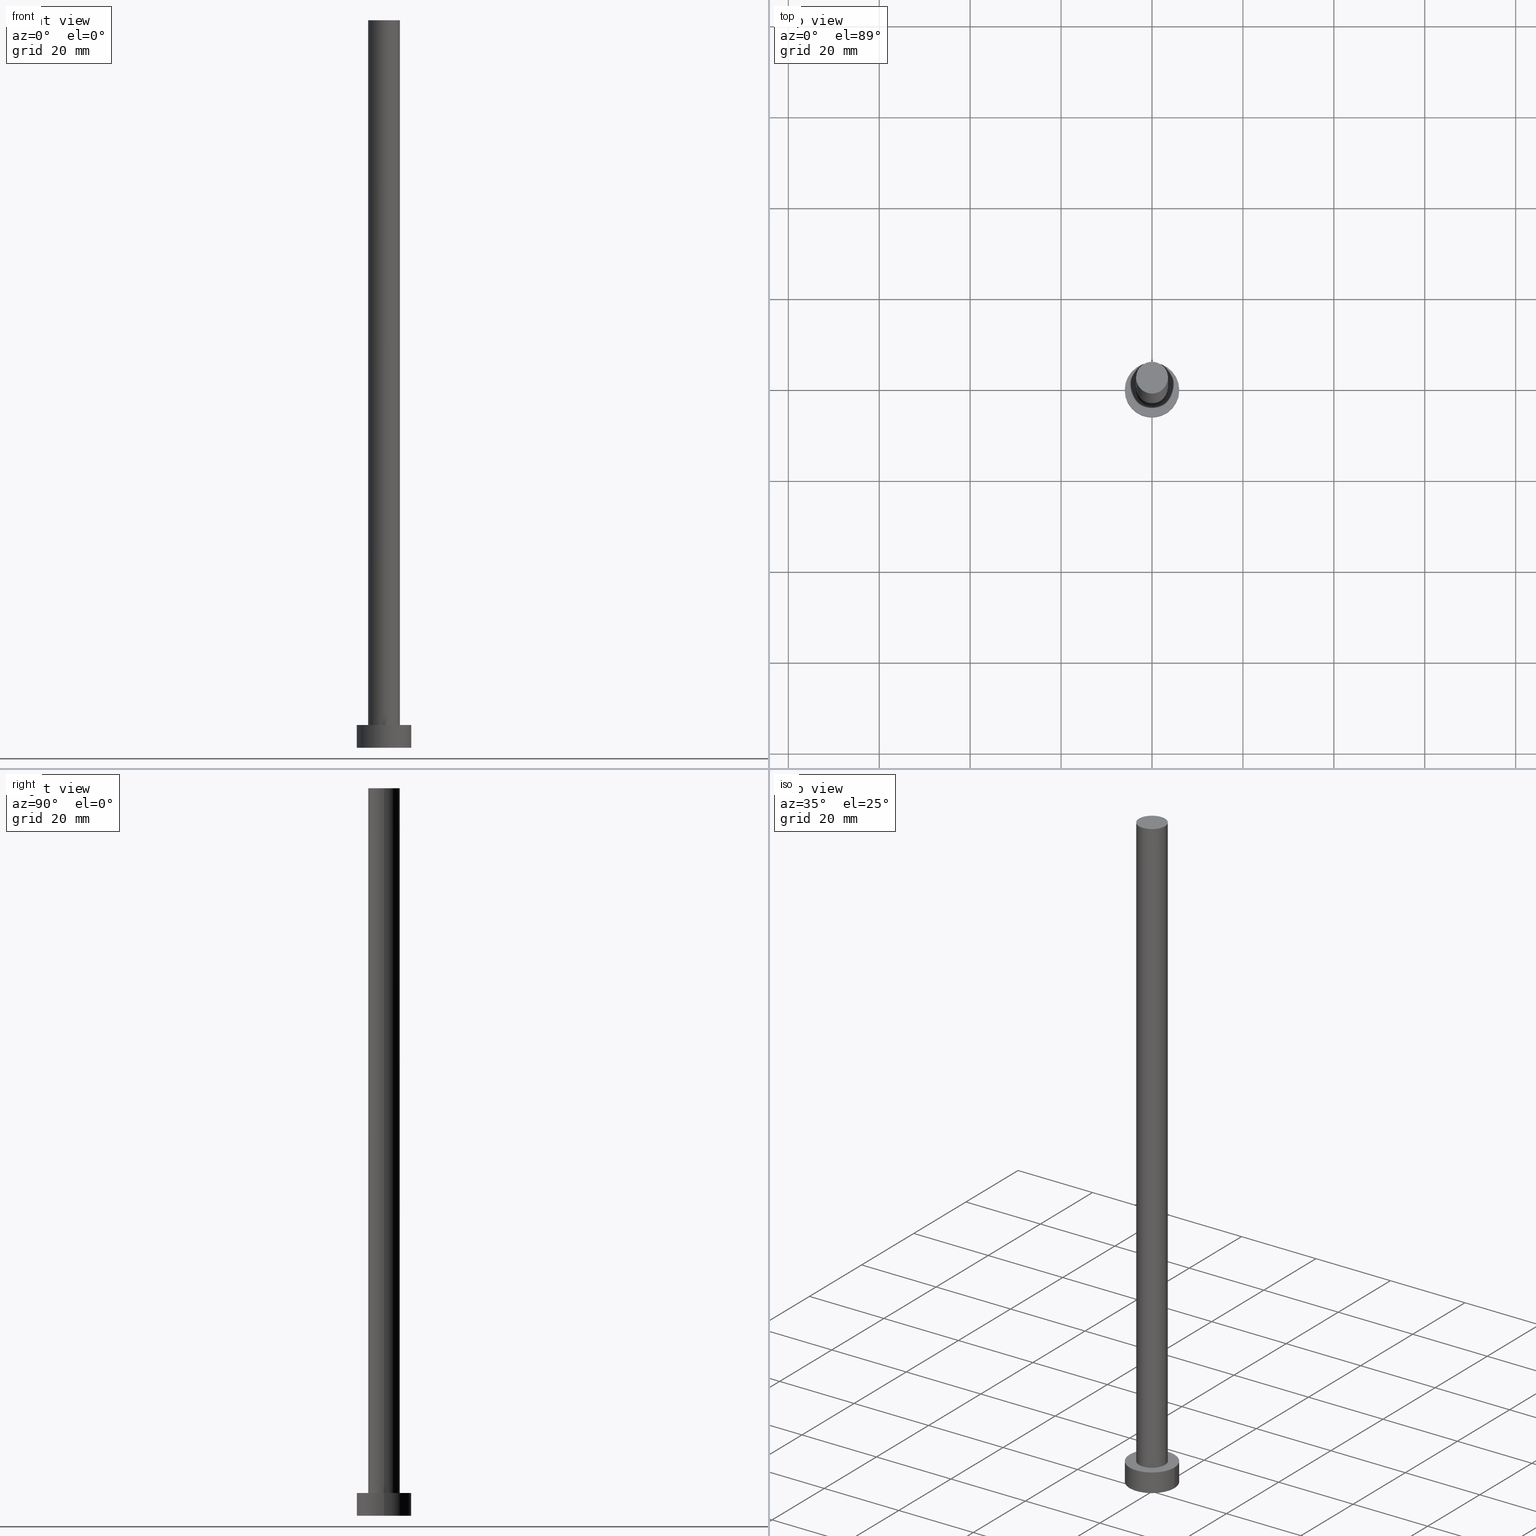
[diagram: canonical four-view strip — front | top / right | iso, engineering-drawing reading convention]
A machine part, canonical four-view strip (front | top / right | iso — engineering-drawing reading convention). The complete STEP part file that produces these views, byte-faithful:
ISO-10303-21;
HEADER;
FILE_DESCRIPTION (( 'STEP AP203' ),
    '1' );
FILE_NAME ('b78a.STEP',
    '2023-02-13T14:51:45',
    ( '' ),
    ( '' ),
    'SwSTEP 2.0',
    'SolidWorks 2019',
    '' );
FILE_SCHEMA (( 'CONFIG_CONTROL_DESIGN' ));
ENDSEC;

DATA;
#1 = PERSON_AND_ORGANIZATION ( #98, #184 ) ;
#2 = PERSON_AND_ORGANIZATION ( #98, #184 ) ;
#3 = ADVANCED_FACE ( 'NONE', ( #35 ), #82, .T. ) ;
#4 = DIRECTION ( 'NONE',  ( 0.000000000000000000, 0.000000000000000000, 1.000000000000000000 ) ) ;
#5 =( GEOMETRIC_REPRESENTATION_CONTEXT ( 3 ) GLOBAL_UNCERTAINTY_ASSIGNED_CONTEXT ( ( #163 ) ) GLOBAL_UNIT_ASSIGNED_CONTEXT ( ( #147, #89, #75 ) ) REPRESENTATION_CONTEXT ( 'NONE', 'WORKASPACE' ) );
#6 = APPLICATION_PROTOCOL_DEFINITION ( 'international standard', 'config_control_design', 1994, #125 ) ;
#7 = APPROVAL ( #103, 'NEUR�EN�' ) ;
#8 = CARTESIAN_POINT ( 'NONE',  ( -3.500000000000000000, 0.000000000000000000, 5.000000000000000000 ) ) ;
#9 = DIRECTION ( 'NONE',  ( -0.000000000000000000, -0.000000000000000000, -1.000000000000000000 ) ) ;
#10 = DIRECTION ( 'NONE',  ( 1.000000000000000000, 0.000000000000000000, -0.000000000000000000 ) ) ;
#11 = CARTESIAN_POINT ( 'NONE',  ( 3.500000000000000000, 4.286263797015736595E-16, 5.000000000000000000 ) ) ;
#12 = CC_DESIGN_SECURITY_CLASSIFICATION ( #88, ( #218 ) ) ;
#13 = EDGE_LOOP ( 'NONE', ( #180, #241, #108, #157 ) ) ;
#14 = DIRECTION ( 'NONE',  ( 1.000000000000000000, 0.000000000000000000, 0.000000000000000000 ) ) ;
#15 = AXIS2_PLACEMENT_3D ( 'NONE', #57, #253, #195 ) ;
#16 = ADVANCED_FACE ( 'NONE', ( #234 ), #73, .F. ) ;
#17 = VECTOR ( 'NONE', #27, 1000.000000000000000 ) ;
#18 = APPROVAL_STATUS ( 'not_yet_approved' ) ;
#19 = DIRECTION ( 'NONE',  ( 1.000000000000000000, 0.000000000000000000, -0.000000000000000000 ) ) ;
#20 = ORIENTED_EDGE ( 'NONE', *, *, #189, .F. ) ;
#21 = EDGE_CURVE ( 'NONE', #60, #220, #245, .T. ) ;
#22 = AXIS2_PLACEMENT_3D ( 'NONE', #134, #211, #166 ) ;
#23 = CALENDAR_DATE ( 2023, 13, 2 ) ;
#24 = EDGE_CURVE ( 'NONE', #199, #200, #179, .T. ) ;
#25 = CARTESIAN_POINT ( 'NONE',  ( 3.500000000000000000, 4.286263797015736595E-16, 160.0000000000000000 ) ) ;
#26 = LOCAL_TIME ( 15, 51, 45.00000000000000000, #194 ) ;
#27 = DIRECTION ( 'NONE',  ( -0.000000000000000000, -0.000000000000000000, -1.000000000000000000 ) ) ;
#28 = CIRCLE ( 'NONE', #15, 6.000000000000000888 ) ;
#29 = CARTESIAN_POINT ( 'NONE',  ( 6.000000000000000888, 7.347880794884120722E-16, 5.000000000000000000 ) ) ;
#30 = CARTESIAN_POINT ( 'NONE',  ( 0.000000000000000000, 0.000000000000000000, 5.000000000000000000 ) ) ;
#31 = CLOSED_SHELL ( 'NONE', ( #112, #229, #171, #74, #16, #3, #102 ) ) ;
#32 = AXIS2_PLACEMENT_3D ( 'NONE', #111, #109, #14 ) ;
#33 = COORDINATED_UNIVERSAL_TIME_OFFSET ( 1, 0, .AHEAD. ) ;
#34 = PLANE ( 'NONE',  #70 ) ;
#35 = FACE_OUTER_BOUND ( 'NONE', #255, .T. ) ;
#36 = APPROVAL_ROLE ( '' ) ;
#37 = CALENDAR_DATE ( 2023, 13, 2 ) ;
#38 = APPROVAL ( #135, 'NEUR�EN�' ) ;
#39 = APPROVAL_DATE_TIME ( #41, #7 ) ;
#40 = VECTOR ( 'NONE', #181, 1000.000000000000000 ) ;
#41 = DATE_AND_TIME ( #37, #100 ) ;
#42 = EDGE_LOOP ( 'NONE', ( #101, #96 ) ) ;
#43 = DIRECTION ( 'NONE',  ( 1.000000000000000000, 0.000000000000000000, 0.000000000000000000 ) ) ;
#44 = EDGE_CURVE ( 'NONE', #199, #161, #251, .T. ) ;
#45 = ORIENTED_EDGE ( 'NONE', *, *, #44, .T. ) ;
#46 = CARTESIAN_POINT ( 'NONE',  ( 0.000000000000000000, 0.000000000000000000, 160.0000000000000000 ) ) ;
#47 = LINE ( 'NONE', #65, #40 ) ;
#48 = DIRECTION ( 'NONE',  ( -1.000000000000000000, 0.000000000000000000, 0.000000000000000000 ) ) ;
#49 = ORIENTED_EDGE ( 'NONE', *, *, #24, .F. ) ;
#50 = DIRECTION ( 'NONE',  ( 1.000000000000000000, 0.000000000000000000, 0.000000000000000000 ) ) ;
#51 = APPROVAL_PERSON_ORGANIZATION ( #188, #38, #212 ) ;
#52 = CARTESIAN_POINT ( 'NONE',  ( 0.000000000000000000, 0.000000000000000000, 160.0000000000000000 ) ) ;
#53 = PERSON_AND_ORGANIZATION_ROLE ( 'design_supplier' ) ;
#54 = VERTEX_POINT ( 'NONE', #8 ) ;
#55 = DATE_AND_TIME ( #217, #26 ) ;
#56 = AXIS2_PLACEMENT_3D ( 'NONE', #243, #4, #141 ) ;
#57 = CARTESIAN_POINT ( 'NONE',  ( 0.000000000000000000, 0.000000000000000000, 5.000000000000000000 ) ) ;
#58 = COORDINATED_UNIVERSAL_TIME_OFFSET ( 1, 0, .AHEAD. ) ;
#59 = APPLICATION_CONTEXT ( 'configuration controlled 3d designs of mechanical parts and assemblies' ) ;
#60 = VERTEX_POINT ( 'NONE', #159 ) ;
#61 = AXIS2_PLACEMENT_3D ( 'NONE', #91, #114, #226 ) ;
#62 = DIRECTION ( 'NONE',  ( 0.000000000000000000, 0.000000000000000000, 1.000000000000000000 ) ) ;
#63 = ORIENTED_EDGE ( 'NONE', *, *, #21, .T. ) ;
#64 = CARTESIAN_POINT ( 'NONE',  ( 0.000000000000000000, 0.000000000000000000, 160.0000000000000000 ) ) ;
#65 = CARTESIAN_POINT ( 'NONE',  ( -6.000000000000000888, 0.000000000000000000, 5.000000000000000000 ) ) ;
#66 = AXIS2_PLACEMENT_3D ( 'NONE', #165, #249, #145 ) ;
#67 = DATE_TIME_ROLE ( 'creation_date' ) ;
#68 = FACE_OUTER_BOUND ( 'NONE', #216, .T. ) ;
#69 = LOCAL_TIME ( 15, 51, 45.00000000000000000, #78 ) ;
#70 = AXIS2_PLACEMENT_3D ( 'NONE', #153, #127, #19 ) ;
#71 = CC_DESIGN_PERSON_AND_ORGANIZATION_ASSIGNMENT ( #169, #139, ( #129 ) ) ;
#72 = LINE ( 'NONE', #206, #235 ) ;
#73 = PLANE ( 'NONE',  #66 ) ;
#74 = ADVANCED_FACE ( 'NONE', ( #247, #104 ), #34, .T. ) ;
#75 =( NAMED_UNIT ( * ) SI_UNIT ( $, .STERADIAN. ) SOLID_ANGLE_UNIT ( ) );
#76 = APPROVAL_PERSON_ORGANIZATION ( #176, #7, #36 ) ;
#77 = ORIENTED_EDGE ( 'NONE', *, *, #142, .F. ) ;
#78 = COORDINATED_UNIVERSAL_TIME_OFFSET ( 1, 0, .AHEAD. ) ;
#79 = DIRECTION ( 'NONE',  ( 0.000000000000000000, 0.000000000000000000, 1.000000000000000000 ) ) ;
#80 = ORIENTED_EDGE ( 'NONE', *, *, #126, .F. ) ;
#81 = PERSON_AND_ORGANIZATION_ROLE ( 'classification_officer' ) ;
#82 = CYLINDRICAL_SURFACE ( 'NONE', #144, 3.500000000000000000 ) ;
#83 = LOCAL_TIME ( 15, 51, 45.00000000000000000, #33 ) ;
#84 = DIRECTION ( 'NONE',  ( -1.000000000000000000, 0.000000000000000000, 0.000000000000000000 ) ) ;
#85 = SHAPE_DEFINITION_REPRESENTATION ( #191, #228 ) ;
#86 = CARTESIAN_POINT ( 'NONE',  ( 6.000000000000000888, 7.347880794884120722E-16, 0.000000000000000000 ) ) ;
#87 = CARTESIAN_POINT ( 'NONE',  ( 0.000000000000000000, 0.000000000000000000, 5.000000000000000000 ) ) ;
#88 = SECURITY_CLASSIFICATION ( '', '', #136 ) ;
#89 =( NAMED_UNIT ( * ) PLANE_ANGLE_UNIT ( ) SI_UNIT ( $, .RADIAN. ) );
#90 = CIRCLE ( 'NONE', #232, 6.000000000000000888 ) ;
#91 = CARTESIAN_POINT ( 'NONE',  ( 0.000000000000000000, 0.000000000000000000, 5.000000000000000000 ) ) ;
#92 = EDGE_CURVE ( 'NONE', #185, #161, #130, .T. ) ;
#93 = AXIS2_PLACEMENT_3D ( 'NONE', #46, #248, #160 ) ;
#94 = CC_DESIGN_PERSON_AND_ORGANIZATION_ASSIGNMENT ( #1, #53, ( #218 ) ) ;
#95 = DATE_AND_TIME ( #119, #83 ) ;
#96 = ORIENTED_EDGE ( 'NONE', *, *, #182, .F. ) ;
#97 = APPLICATION_PROTOCOL_DEFINITION ( 'international standard', 'config_control_design', 1994, #59 ) ;
#98 = PERSON ( 'NEUR�EN�', 'NEUR�EN�', 'NEUR�EN�', ('NEUR�EN�'), ('NEUR�EN�'), ('NEUR�EN�') ) ;
#99 = DIRECTION ( 'NONE',  ( -0.000000000000000000, -0.000000000000000000, -1.000000000000000000 ) ) ;
#100 = LOCAL_TIME ( 15, 51, 45.00000000000000000, #58 ) ;
#101 = ORIENTED_EDGE ( 'NONE', *, *, #167, .F. ) ;
#102 = ADVANCED_FACE ( 'NONE', ( #178 ), #242, .T. ) ;
#103 = APPROVAL_STATUS ( 'not_yet_approved' ) ;
#104 = FACE_OUTER_BOUND ( 'NONE', #131, .T. ) ;
#105 = CALENDAR_DATE ( 2023, 13, 2 ) ;
#106 = CC_DESIGN_DATE_AND_TIME_ASSIGNMENT ( #55, #192, ( #88 ) ) ;
#107 = VERTEX_POINT ( 'NONE', #11 ) ;
#108 = ORIENTED_EDGE ( 'NONE', *, *, #151, .T. ) ;
#109 = DIRECTION ( 'NONE',  ( 0.000000000000000000, 0.000000000000000000, 1.000000000000000000 ) ) ;
#110 = FACE_OUTER_BOUND ( 'NONE', #123, .T. ) ;
#111 = CARTESIAN_POINT ( 'NONE',  ( 0.000000000000000000, 0.000000000000000000, 0.000000000000000000 ) ) ;
#112 = ADVANCED_FACE ( 'NONE', ( #68 ), #224, .T. ) ;
#113 = CARTESIAN_POINT ( 'NONE',  ( -6.000000000000000888, 0.000000000000000000, 0.000000000000000000 ) ) ;
#114 = DIRECTION ( 'NONE',  ( 0.000000000000000000, 0.000000000000000000, 1.000000000000000000 ) ) ;
#115 = CIRCLE ( 'NONE', #56, 3.500000000000000000 ) ;
#116 = AXIS2_PLACEMENT_3D ( 'NONE', #156, #138, #221 ) ;
#117 = EDGE_CURVE ( 'NONE', #60, #54, #143, .T. ) ;
#118 = PERSON_AND_ORGANIZATION_ROLE ( 'design_owner' ) ;
#119 = CALENDAR_DATE ( 2023, 13, 2 ) ;
#120 = APPROVAL_ROLE ( '' ) ;
#121 = EDGE_CURVE ( 'NONE', #200, #199, #28, .T. ) ;
#122 = PERSON_AND_ORGANIZATION_ROLE ( 'creator' ) ;
#123 = EDGE_LOOP ( 'NONE', ( #49, #45, #146, #231 ) ) ;
#124 = ORIENTED_EDGE ( 'NONE', *, *, #189, .T. ) ;
#125 = APPLICATION_CONTEXT ( 'configuration controlled 3d designs of mechanical parts and assemblies' ) ;
#126 = EDGE_CURVE ( 'NONE', #161, #185, #90, .T. ) ;
#127 = DIRECTION ( 'NONE',  ( 0.000000000000000000, 0.000000000000000000, 1.000000000000000000 ) ) ;
#128 = CYLINDRICAL_SURFACE ( 'NONE', #154, 6.000000000000000888 ) ;
#129 = PRODUCT_DEFINITION ( 'NEZN�M�', '', #218, #204 ) ;
#130 = CIRCLE ( 'NONE', #215, 6.000000000000000888 ) ;
#131 = EDGE_LOOP ( 'NONE', ( #225, #164 ) ) ;
#132 = CC_DESIGN_PERSON_AND_ORGANIZATION_ASSIGNMENT ( #210, #118, ( #237 ) ) ;
#133 = AXIS2_PLACEMENT_3D ( 'NONE', #205, #230, #50 ) ;
#134 = CARTESIAN_POINT ( 'NONE',  ( 0.000000000000000000, 0.000000000000000000, 5.000000000000000000 ) ) ;
#135 = APPROVAL_STATUS ( 'not_yet_approved' ) ;
#136 = SECURITY_CLASSIFICATION_LEVEL ( 'unclassified' ) ;
#137 = CC_DESIGN_PERSON_AND_ORGANIZATION_ASSIGNMENT ( #196, #122, ( #218 ) ) ;
#138 = DIRECTION ( 'NONE',  ( 0.000000000000000000, 0.000000000000000000, 1.000000000000000000 ) ) ;
#139 = PERSON_AND_ORGANIZATION_ROLE ( 'creator' ) ;
#140 = CIRCLE ( 'NONE', #116, 3.500000000000000000 ) ;
#141 = DIRECTION ( 'NONE',  ( 1.000000000000000000, 0.000000000000000000, 0.000000000000000000 ) ) ;
#142 = EDGE_CURVE ( 'NONE', #220, #60, #115, .T. ) ;
#143 = LINE ( 'NONE', #150, #202 ) ;
#144 = AXIS2_PLACEMENT_3D ( 'NONE', #52, #233, #214 ) ;
#145 = DIRECTION ( 'NONE',  ( 1.000000000000000000, 0.000000000000000000, -0.000000000000000000 ) ) ;
#146 = ORIENTED_EDGE ( 'NONE', *, *, #126, .T. ) ;
#147 =( LENGTH_UNIT ( ) NAMED_UNIT ( * ) SI_UNIT ( .MILLI., .METRE. ) );
#148 = CARTESIAN_POINT ( 'NONE',  ( 6.000000000000000888, 7.347880794884120722E-16, 5.000000000000000000 ) ) ;
#149 = ORIENTED_EDGE ( 'NONE', *, *, #117, .F. ) ;
#150 = CARTESIAN_POINT ( 'NONE',  ( -3.500000000000000000, 0.000000000000000000, 160.0000000000000000 ) ) ;
#151 = EDGE_CURVE ( 'NONE', #200, #185, #47, .T. ) ;
#152 = DATE_AND_TIME ( #105, #69 ) ;
#153 = CARTESIAN_POINT ( 'NONE',  ( 0.000000000000000000, 0.000000000000000000, 5.000000000000000000 ) ) ;
#154 = AXIS2_PLACEMENT_3D ( 'NONE', #30, #203, #48 ) ;
#155 = ORIENTED_EDGE ( 'NONE', *, *, #142, .T. ) ;
#156 = CARTESIAN_POINT ( 'NONE',  ( 0.000000000000000000, 0.000000000000000000, 5.000000000000000000 ) ) ;
#157 = ORIENTED_EDGE ( 'NONE', *, *, #92, .T. ) ;
#158 = CYLINDRICAL_SURFACE ( 'NONE', #209, 6.000000000000000888 ) ;
#159 = CARTESIAN_POINT ( 'NONE',  ( -3.500000000000000000, 0.000000000000000000, 160.0000000000000000 ) ) ;
#160 = DIRECTION ( 'NONE',  ( -1.000000000000000000, 0.000000000000000000, 0.000000000000000000 ) ) ;
#161 = VERTEX_POINT ( 'NONE', #86 ) ;
#162 = AXIS2_PLACEMENT_3D ( 'NONE', #64, #207, #10 ) ;
#163 = UNCERTAINTY_MEASURE_WITH_UNIT (LENGTH_MEASURE( 1.000000000000000082E-05 ), #147, 'distance_accuracy_value', 'NONE');
#164 = ORIENTED_EDGE ( 'NONE', *, *, #24, .T. ) ;
#165 = CARTESIAN_POINT ( 'NONE',  ( 0.000000000000000000, 0.000000000000000000, 0.000000000000000000 ) ) ;
#166 = DIRECTION ( 'NONE',  ( 1.000000000000000000, 0.000000000000000000, 0.000000000000000000 ) ) ;
#167 = EDGE_CURVE ( 'NONE', #54, #107, #140, .T. ) ;
#168 = CIRCLE ( 'NONE', #61, 3.500000000000000000 ) ;
#169 = PERSON_AND_ORGANIZATION ( #98, #184 ) ;
#170 = ORIENTED_EDGE ( 'NONE', *, *, #167, .T. ) ;
#171 = ADVANCED_FACE ( 'NONE', ( #187 ), #128, .T. ) ;
#172 = APPROVAL_DATE_TIME ( #152, #186 ) ;
#173 = CC_DESIGN_APPROVAL ( #186, ( #218 ) ) ;
#174 = CARTESIAN_POINT ( 'NONE',  ( 0.000000000000000000, 0.000000000000000000, 0.000000000000000000 ) ) ;
#175 = DIRECTION ( 'NONE',  ( -0.000000000000000000, -0.000000000000000000, -1.000000000000000000 ) ) ;
#176 = PERSON_AND_ORGANIZATION ( #98, #184 ) ;
#177 = ORIENTED_EDGE ( 'NONE', *, *, #117, .T. ) ;
#178 = FACE_OUTER_BOUND ( 'NONE', #238, .T. ) ;
#179 = CIRCLE ( 'NONE', #22, 6.000000000000000888 ) ;
#180 = ORIENTED_EDGE ( 'NONE', *, *, #44, .F. ) ;
#181 = DIRECTION ( 'NONE',  ( -0.000000000000000000, -0.000000000000000000, -1.000000000000000000 ) ) ;
#182 = EDGE_CURVE ( 'NONE', #107, #54, #168, .T. ) ;
#183 = MECHANICAL_CONTEXT ( 'NONE', #59, 'mechanical' ) ;
#184 = ORGANIZATION ( 'NEUR�EN�', 'NEUR�EN�', '' ) ;
#185 = VERTEX_POINT ( 'NONE', #113 ) ;
#186 = APPROVAL ( #18, 'NEUR�EN�' ) ;
#187 = FACE_OUTER_BOUND ( 'NONE', #13, .T. ) ;
#188 = PERSON_AND_ORGANIZATION ( #98, #184 ) ;
#189 = EDGE_CURVE ( 'NONE', #220, #107, #72, .T. ) ;
#190 = APPROVAL_DATE_TIME ( #95, #38 ) ;
#191 = PRODUCT_DEFINITION_SHAPE ( 'NONE', 'NONE',  #129 ) ;
#192 = DATE_TIME_ROLE ( 'classification_date' ) ;
#193 = EDGE_LOOP ( 'NONE', ( #208, #80 ) ) ;
#194 = COORDINATED_UNIVERSAL_TIME_OFFSET ( 1, 0, .AHEAD. ) ;
#195 = DIRECTION ( 'NONE',  ( 1.000000000000000000, 0.000000000000000000, 0.000000000000000000 ) ) ;
#196 = PERSON_AND_ORGANIZATION ( #98, #184 ) ;
#197 = LOCAL_TIME ( 15, 51, 45.00000000000000000, #222 ) ;
#198 = PERSON_AND_ORGANIZATION ( #98, #184 ) ;
#199 = VERTEX_POINT ( 'NONE', #29 ) ;
#200 = VERTEX_POINT ( 'NONE', #227 ) ;
#201 = APPROVAL_PERSON_ORGANIZATION ( #198, #186, #120 ) ;
#202 = VECTOR ( 'NONE', #99, 1000.000000000000000 ) ;
#203 = DIRECTION ( 'NONE',  ( -0.000000000000000000, -0.000000000000000000, -1.000000000000000000 ) ) ;
#204 = DESIGN_CONTEXT ( 'detailed design', #125, 'design' ) ;
#205 = CARTESIAN_POINT ( 'NONE',  ( 0.000000000000000000, 0.000000000000000000, 160.0000000000000000 ) ) ;
#206 = CARTESIAN_POINT ( 'NONE',  ( 3.500000000000000000, 4.286263797015736595E-16, 160.0000000000000000 ) ) ;
#207 = DIRECTION ( 'NONE',  ( 0.000000000000000000, 0.000000000000000000, 1.000000000000000000 ) ) ;
#208 = ORIENTED_EDGE ( 'NONE', *, *, #92, .F. ) ;
#209 = AXIS2_PLACEMENT_3D ( 'NONE', #87, #175, #84 ) ;
#210 = PERSON_AND_ORGANIZATION ( #98, #184 ) ;
#211 = DIRECTION ( 'NONE',  ( 0.000000000000000000, 0.000000000000000000, 1.000000000000000000 ) ) ;
#212 = APPROVAL_ROLE ( '' ) ;
#213 = DIRECTION ( 'NONE',  ( 1.000000000000000000, 0.000000000000000000, 0.000000000000000000 ) ) ;
#214 = DIRECTION ( 'NONE',  ( -1.000000000000000000, 0.000000000000000000, 0.000000000000000000 ) ) ;
#215 = AXIS2_PLACEMENT_3D ( 'NONE', #240, #62, #43 ) ;
#216 = EDGE_LOOP ( 'NONE', ( #77, #124, #223, #149 ) ) ;
#217 = CALENDAR_DATE ( 2023, 13, 2 ) ;
#218 = PRODUCT_DEFINITION_FORMATION_WITH_SPECIFIED_SOURCE ( 'LIBOVOLN�', '', #237, .NOT_KNOWN. ) ;
#219 = PRODUCT_RELATED_PRODUCT_CATEGORY ( 'detail', '', ( #237 ) ) ;
#220 = VERTEX_POINT ( 'NONE', #25 ) ;
#221 = DIRECTION ( 'NONE',  ( 1.000000000000000000, 0.000000000000000000, 0.000000000000000000 ) ) ;
#222 = COORDINATED_UNIVERSAL_TIME_OFFSET ( 1, 0, .AHEAD. ) ;
#223 = ORIENTED_EDGE ( 'NONE', *, *, #182, .T. ) ;
#224 = CYLINDRICAL_SURFACE ( 'NONE', #93, 3.500000000000000000 ) ;
#225 = ORIENTED_EDGE ( 'NONE', *, *, #121, .T. ) ;
#226 = DIRECTION ( 'NONE',  ( 1.000000000000000000, 0.000000000000000000, 0.000000000000000000 ) ) ;
#227 = CARTESIAN_POINT ( 'NONE',  ( -6.000000000000000888, 0.000000000000000000, 5.000000000000000000 ) ) ;
#228 = ADVANCED_BREP_SHAPE_REPRESENTATION ( 'b78a', ( #244, #32 ), #5 ) ;
#229 = ADVANCED_FACE ( 'NONE', ( #110 ), #158, .T. ) ;
#230 = DIRECTION ( 'NONE',  ( 0.000000000000000000, 0.000000000000000000, 1.000000000000000000 ) ) ;
#231 = ORIENTED_EDGE ( 'NONE', *, *, #151, .F. ) ;
#232 = AXIS2_PLACEMENT_3D ( 'NONE', #174, #79, #213 ) ;
#233 = DIRECTION ( 'NONE',  ( -0.000000000000000000, -0.000000000000000000, -1.000000000000000000 ) ) ;
#234 = FACE_OUTER_BOUND ( 'NONE', #193, .T. ) ;
#235 = VECTOR ( 'NONE', #9, 1000.000000000000000 ) ;
#236 = CC_DESIGN_PERSON_AND_ORGANIZATION_ASSIGNMENT ( #2, #81, ( #88 ) ) ;
#237 = PRODUCT ( 'b78a', 'b78a', '', ( #183 ) ) ;
#238 = EDGE_LOOP ( 'NONE', ( #63, #155 ) ) ;
#239 = CC_DESIGN_APPROVAL ( #7, ( #88 ) ) ;
#240 = CARTESIAN_POINT ( 'NONE',  ( 0.000000000000000000, 0.000000000000000000, 0.000000000000000000 ) ) ;
#241 = ORIENTED_EDGE ( 'NONE', *, *, #121, .F. ) ;
#242 = PLANE ( 'NONE',  #162 ) ;
#243 = CARTESIAN_POINT ( 'NONE',  ( 0.000000000000000000, 0.000000000000000000, 160.0000000000000000 ) ) ;
#244 = MANIFOLD_SOLID_BREP ( 'P�idat vysunut�m3', #31 ) ;
#245 = CIRCLE ( 'NONE', #133, 3.500000000000000000 ) ;
#246 = DATE_AND_TIME ( #23, #197 ) ;
#247 = FACE_BOUND ( 'NONE', #42, .T. ) ;
#248 = DIRECTION ( 'NONE',  ( -0.000000000000000000, -0.000000000000000000, -1.000000000000000000 ) ) ;
#249 = DIRECTION ( 'NONE',  ( 0.000000000000000000, 0.000000000000000000, 1.000000000000000000 ) ) ;
#250 = ORIENTED_EDGE ( 'NONE', *, *, #21, .F. ) ;
#251 = LINE ( 'NONE', #148, #17 ) ;
#252 = CC_DESIGN_APPROVAL ( #38, ( #129 ) ) ;
#253 = DIRECTION ( 'NONE',  ( 0.000000000000000000, 0.000000000000000000, 1.000000000000000000 ) ) ;
#254 = CC_DESIGN_DATE_AND_TIME_ASSIGNMENT ( #246, #67, ( #129 ) ) ;
#255 = EDGE_LOOP ( 'NONE', ( #20, #250, #177, #170 ) ) ;
ENDSEC;
END-ISO-10303-21;
